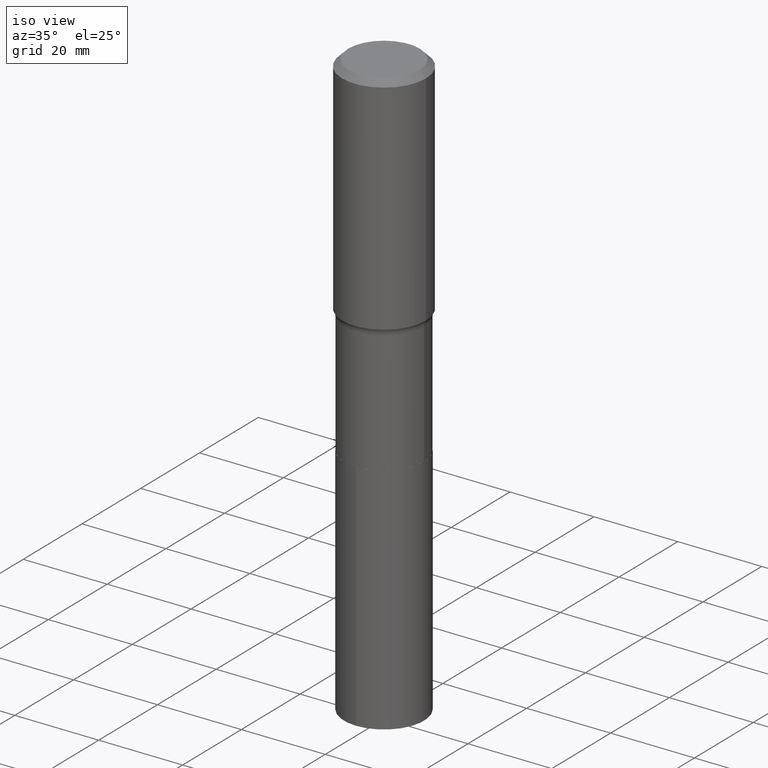
[diagram: clean part render]
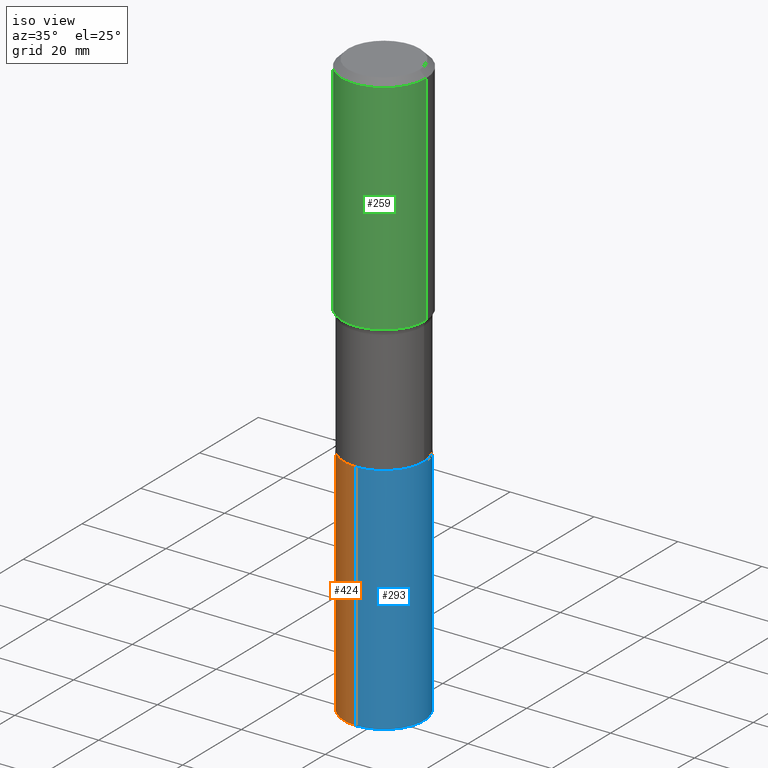
[diagram: same view with three faces highlighted in distinct colors, each labeled with its STEP entity id]
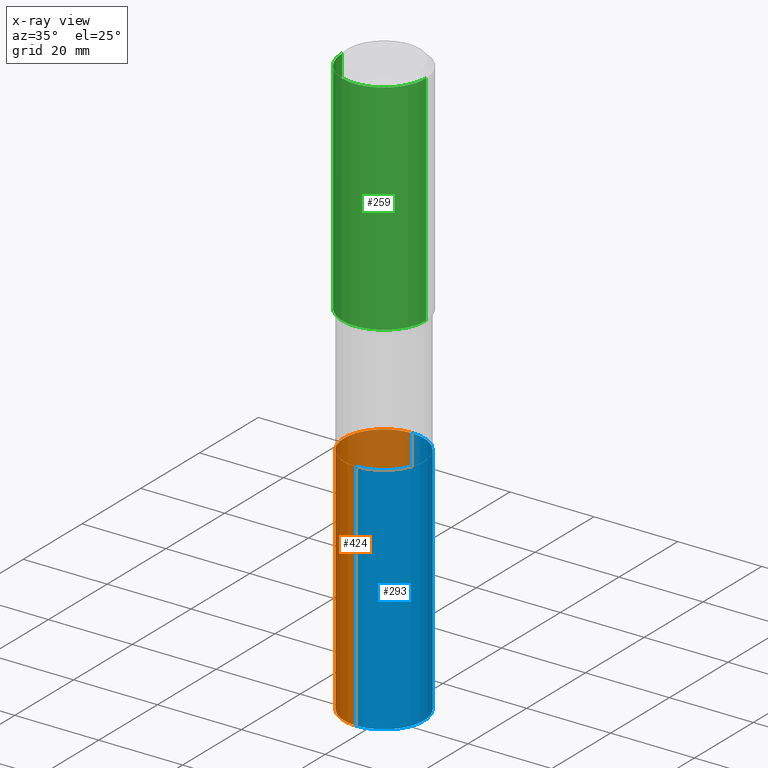
[diagram: x-ray of the same camera — body ghosted, the three highlighted faces saturated]
A machine part, iso view with three faces highlighted in distinct colors.
The next image is the same camera in x-ray (body ghosted, the three faces saturated) — at least one of them is partly hidden behind the body in this view.
Their STEP definitions:

[orange] entity #424 — the highlighted cylindrical surface (partial cylindrical patch) has radius 9.525 mm, axis along (-0, 0, 1).
#4 = DIRECTION ( 'NONE',  ( -6.982962677686265922E-15, -1.000000000000000000, 2.913971193241880372E-15 ) ) ;
#20 = CIRCLE ( 'NONE', #60, 0.3750000000000000555 ) ;
#49 = CARTESIAN_POINT ( 'NONE',  ( -2.618611004132215121E-15, -0.3750000000000192624, -5.511799999999999145 ) ) ;
#51 = ORIENTED_EDGE ( 'NONE', *, *, #168, .T. ) ;
#60 = AXIS2_PLACEMENT_3D ( 'NONE', #401, #94, #223 ) ;
#62 = CARTESIAN_POINT ( 'NONE',  ( 1.347781913481942727E-28, -1.924594477709692367E-14, -5.511800000000000033 ) ) ;
#68 = DIRECTION ( 'NONE',  ( -2.444960686371016703E-29, 3.492208995337349843E-15, 1.000000000000000000 ) ) ;
#71 = VECTOR ( 'NONE', #68, 39.37007874015748143 ) ;
#88 = ORIENTED_EDGE ( 'NONE', *, *, #137, .F. ) ;
#94 = DIRECTION ( 'NONE',  ( -2.444960686371016422E-29, 3.492208995337349843E-15, 1.000000000000000000 ) ) ;
#101 = LINE ( 'NONE', #458, #71 ) ;
#110 = EDGE_LOOP ( 'NONE', ( #305, #197, #51, #88 ) ) ;
#116 = VERTEX_POINT ( 'NONE', #49 ) ;
#137 = EDGE_CURVE ( 'NONE', #396, #446, #20, .T. ) ;
#168 = EDGE_CURVE ( 'NONE', #116, #446, #410, .T. ) ;
#183 = CARTESIAN_POINT ( 'NONE',  ( 8.108685467548674776E-29, -1.157705382333610061E-14, -3.315799999999999859 ) ) ;
#197 = ORIENTED_EDGE ( 'NONE', *, *, #417, .T. ) ;
#209 = DIRECTION ( 'NONE',  ( -2.444960686371016422E-29, 3.492208995337349843E-15, 1.000000000000000000 ) ) ;
#220 = CIRCLE ( 'NONE', #385, 0.3750000000000000555 ) ;
#223 = DIRECTION ( 'NONE',  ( -6.982962677686265922E-15, -1.000000000000000000, 2.913971193241880372E-15 ) ) ;
#239 = CARTESIAN_POINT ( 'NONE',  ( 2.664535259100510198E-15, 0.3749999999999883982, -3.315800000000000747 ) ) ;
#248 = DIRECTION ( 'NONE',  ( -6.982962677686265922E-15, -1.000000000000000000, 2.913971193241880372E-15 ) ) ;
#272 = FACE_OUTER_BOUND ( 'NONE', #110, .T. ) ;
#305 = ORIENTED_EDGE ( 'NONE', *, *, #343, .F. ) ;
#321 = CARTESIAN_POINT ( 'NONE',  ( -2.618611004132269158E-15, -0.3750000000000116573, -3.315799999999998526 ) ) ;
#343 = EDGE_CURVE ( 'NONE', #430, #396, #101, .T. ) ;
#360 = CARTESIAN_POINT ( 'NONE',  ( 2.664535259100482982E-15, 0.3749999999999807931, -5.511800000000000921 ) ) ;
#371 = AXIS2_PLACEMENT_3D ( 'NONE', #183, #386, #4 ) ;
#373 = DIRECTION ( 'NONE',  ( -2.444960686371016703E-29, 3.492208995337349843E-15, 1.000000000000000000 ) ) ;
#385 = AXIS2_PLACEMENT_3D ( 'NONE', #62, #209, #248 ) ;
#386 = DIRECTION ( 'NONE',  ( -2.444960686371016422E-29, 3.492208995337349843E-15, 1.000000000000000000 ) ) ;
#392 = CYLINDRICAL_SURFACE ( 'NONE', #371, 0.3750000000000000555 ) ;
#394 = VECTOR ( 'NONE', #373, 39.37007874015748143 ) ;
#396 = VERTEX_POINT ( 'NONE', #239 ) ;
#401 = CARTESIAN_POINT ( 'NONE',  ( 8.108685467548674776E-29, -1.157705382333610061E-14, -3.315799999999999859 ) ) ;
#407 = CARTESIAN_POINT ( 'NONE',  ( -2.618611004132269158E-15, -0.3750000000000116573, -3.315799999999998526 ) ) ;
#410 = LINE ( 'NONE', #407, #394 ) ;
#417 = EDGE_CURVE ( 'NONE', #430, #116, #220, .T. ) ;
#424 = ADVANCED_FACE ( 'NONE', ( #272 ), #392, .T. ) ;
#430 = VERTEX_POINT ( 'NONE', #360 ) ;
#446 = VERTEX_POINT ( 'NONE', #321 ) ;
#458 = CARTESIAN_POINT ( 'NONE',  ( 2.664535259100456555E-15, 0.3749999999999883982, -3.315800000000000747 ) ) ;

[blue] entity #293 — the highlighted cylindrical surface (partial cylindrical patch) has radius 9.525 mm, axis along (-0, 0, 1).
#19 = DIRECTION ( 'NONE',  ( -2.444960686371016422E-29, 3.492208995337349843E-15, 1.000000000000000000 ) ) ;
#21 = AXIS2_PLACEMENT_3D ( 'NONE', #384, #356, #282 ) ;
#46 = ORIENTED_EDGE ( 'NONE', *, *, #343, .T. ) ;
#48 = CARTESIAN_POINT ( 'NONE',  ( 8.108685467548674776E-29, -1.157705382333610061E-14, -3.315799999999999859 ) ) ;
#49 = CARTESIAN_POINT ( 'NONE',  ( -2.618611004132215121E-15, -0.3750000000000192624, -5.511799999999999145 ) ) ;
#68 = DIRECTION ( 'NONE',  ( -2.444960686371016703E-29, 3.492208995337349843E-15, 1.000000000000000000 ) ) ;
#71 = VECTOR ( 'NONE', #68, 39.37007874015748143 ) ;
#91 = AXIS2_PLACEMENT_3D ( 'NONE', #48, #361, #125 ) ;
#101 = LINE ( 'NONE', #458, #71 ) ;
#116 = VERTEX_POINT ( 'NONE', #49 ) ;
#125 = DIRECTION ( 'NONE',  ( -6.982962677686265922E-15, -1.000000000000000000, 2.913971193241880372E-15 ) ) ;
#147 = CARTESIAN_POINT ( 'NONE',  ( 8.108685467548674776E-29, -1.157705382333610061E-14, -3.315799999999999859 ) ) ;
#168 = EDGE_CURVE ( 'NONE', #116, #446, #410, .T. ) ;
#169 = CIRCLE ( 'NONE', #91, 0.3750000000000000555 ) ;
#177 = EDGE_CURVE ( 'NONE', #446, #396, #169, .T. ) ;
#187 = ORIENTED_EDGE ( 'NONE', *, *, #177, .F. ) ;
#229 = CIRCLE ( 'NONE', #21, 0.3750000000000000555 ) ;
#234 = EDGE_CURVE ( 'NONE', #116, #430, #229, .T. ) ;
#239 = CARTESIAN_POINT ( 'NONE',  ( 2.664535259100510198E-15, 0.3749999999999883982, -3.315800000000000747 ) ) ;
#273 = FACE_OUTER_BOUND ( 'NONE', #362, .T. ) ;
#281 = DIRECTION ( 'NONE',  ( -6.982962677686265922E-15, -1.000000000000000000, 2.913971193241880372E-15 ) ) ;
#282 = DIRECTION ( 'NONE',  ( -6.982962677686265922E-15, -1.000000000000000000, 2.913971193241880372E-15 ) ) ;
#293 = ADVANCED_FACE ( 'NONE', ( #273 ), #455, .T. ) ;
#308 = AXIS2_PLACEMENT_3D ( 'NONE', #147, #19, #281 ) ;
#321 = CARTESIAN_POINT ( 'NONE',  ( -2.618611004132269158E-15, -0.3750000000000116573, -3.315799999999998526 ) ) ;
#343 = EDGE_CURVE ( 'NONE', #430, #396, #101, .T. ) ;
#356 = DIRECTION ( 'NONE',  ( -2.444960686371016422E-29, 3.492208995337349843E-15, 1.000000000000000000 ) ) ;
#360 = CARTESIAN_POINT ( 'NONE',  ( 2.664535259100482982E-15, 0.3749999999999807931, -5.511800000000000921 ) ) ;
#361 = DIRECTION ( 'NONE',  ( -2.444960686371016422E-29, 3.492208995337349843E-15, 1.000000000000000000 ) ) ;
#362 = EDGE_LOOP ( 'NONE', ( #463, #46, #187, #368 ) ) ;
#368 = ORIENTED_EDGE ( 'NONE', *, *, #168, .F. ) ;
#373 = DIRECTION ( 'NONE',  ( -2.444960686371016703E-29, 3.492208995337349843E-15, 1.000000000000000000 ) ) ;
#384 = CARTESIAN_POINT ( 'NONE',  ( 1.347781913481942727E-28, -1.924594477709692367E-14, -5.511800000000000033 ) ) ;
#394 = VECTOR ( 'NONE', #373, 39.37007874015748143 ) ;
#396 = VERTEX_POINT ( 'NONE', #239 ) ;
#407 = CARTESIAN_POINT ( 'NONE',  ( -2.618611004132269158E-15, -0.3750000000000116573, -3.315799999999998526 ) ) ;
#410 = LINE ( 'NONE', #407, #394 ) ;
#430 = VERTEX_POINT ( 'NONE', #360 ) ;
#446 = VERTEX_POINT ( 'NONE', #321 ) ;
#455 = CYLINDRICAL_SURFACE ( 'NONE', #308, 0.3750000000000000555 ) ;
#458 = CARTESIAN_POINT ( 'NONE',  ( 2.664535259100456555E-15, 0.3749999999999883982, -3.315800000000000747 ) ) ;
#463 = ORIENTED_EDGE ( 'NONE', *, *, #234, .T. ) ;

[green] entity #259 — the highlighted cylindrical surface (partial cylindrical patch) has radius 10 mm, axis along (-0, 0, 1).
#9 = AXIS2_PLACEMENT_3D ( 'NONE', #388, #83, #63 ) ;
#26 = CYLINDRICAL_SURFACE ( 'NONE', #108, 0.3937000000000001609 ) ;
#63 = DIRECTION ( 'NONE',  ( 1.000000000000000000, -6.982962677686265922E-15, 0.000000000000000000 ) ) ;
#83 = DIRECTION ( 'NONE',  ( -2.445468806185136597E-29, 3.491481338843145583E-15, 1.000000000000000000 ) ) ;
#97 = DIRECTION ( 'NONE',  ( -2.445468806185136877E-29, 3.491481338843145188E-15, 1.000000000000000000 ) ) ;
#103 = CARTESIAN_POINT ( 'NONE',  ( 0.3937000000000001609, -2.749192406205084400E-15, 1.919750796630860732E-29 ) ) ;
#108 = AXIS2_PLACEMENT_3D ( 'NONE', #379, #414, #241 ) ;
#136 = ORIENTED_EDGE ( 'NONE', *, *, #339, .T. ) ;
#140 = VECTOR ( 'NONE', #149, 39.37007874015748143 ) ;
#149 = DIRECTION ( 'NONE',  ( -2.445468806185136877E-29, 3.491481338843145188E-15, 1.000000000000000000 ) ) ;
#196 = EDGE_LOOP ( 'NONE', ( #266, #387, #136, #290 ) ) ;
#216 = EDGE_CURVE ( 'NONE', #257, #307, #242, .T. ) ;
#217 = FACE_OUTER_BOUND ( 'NONE', #196, .T. ) ;
#218 = CARTESIAN_POINT ( 'NONE',  ( 5.167022714851833902E-29, -7.377139033896165058E-15, -2.112896595443491066 ) ) ;
#241 = DIRECTION ( 'NONE',  ( 1.000000000000000000, -6.982962677686266711E-15, 4.876176775795935793E-29 ) ) ;
#242 = LINE ( 'NONE', #415, #140 ) ;
#252 = CIRCLE ( 'NONE', #412, 0.3937000000000002720 ) ;
#257 = VERTEX_POINT ( 'NONE', #278 ) ;
#259 = ADVANCED_FACE ( 'NONE', ( #217 ), #26, .T. ) ;
#266 = ORIENTED_EDGE ( 'NONE', *, *, #216, .F. ) ;
#278 = CARTESIAN_POINT ( 'NONE',  ( -0.3937000000000002720, -4.579732283208647905E-15, -2.112896595443491066 ) ) ;
#284 = CIRCLE ( 'NONE', #9, 0.3937000000000000499 ) ;
#290 = ORIENTED_EDGE ( 'NONE', *, *, #438, .F. ) ;
#299 = CARTESIAN_POINT ( 'NONE',  ( 0.3937000000000000499, -2.955381836670466588E-15, -0.05905500000000037109 ) ) ;
#307 = VERTEX_POINT ( 'NONE', #320 ) ;
#317 = CARTESIAN_POINT ( 'NONE',  ( 0.3937000000000002720, -1.012633144010124985E-14, -2.112896595443491066 ) ) ;
#320 = CARTESIAN_POINT ( 'NONE',  ( -0.3937000000000000499, -9.942574814932580477E-16, -0.05905500000000037109 ) ) ;
#329 = VERTEX_POINT ( 'NONE', #317 ) ;
#339 = EDGE_CURVE ( 'NONE', #329, #465, #459, .T. ) ;
#349 = DIRECTION ( 'NONE',  ( 1.000000000000000000, -6.982962677686269077E-15, 0.000000000000000000 ) ) ;
#369 = EDGE_CURVE ( 'NONE', #257, #329, #252, .T. ) ;
#379 = CARTESIAN_POINT ( 'NONE',  ( 0.000000000000000000, 0.000000000000000000, 0.000000000000000000 ) ) ;
#387 = ORIENTED_EDGE ( 'NONE', *, *, #369, .T. ) ;
#388 = CARTESIAN_POINT ( 'NONE',  ( 1.444171603492641547E-30, -2.061894304653832726E-16, -0.05905500000000037109 ) ) ;
#412 = AXIS2_PLACEMENT_3D ( 'NONE', #218, #421, #349 ) ;
#414 = DIRECTION ( 'NONE',  ( -2.445468806185136597E-29, 3.491481338843145583E-15, 1.000000000000000000 ) ) ;
#415 = CARTESIAN_POINT ( 'NONE',  ( -0.3937000000000001609, 2.797406750687515575E-15, -1.936584745033357296E-29 ) ) ;
#421 = DIRECTION ( 'NONE',  ( -2.445468806185136597E-29, 3.491481338843145583E-15, 1.000000000000000000 ) ) ;
#427 = VECTOR ( 'NONE', #97, 39.37007874015748143 ) ;
#438 = EDGE_CURVE ( 'NONE', #307, #465, #284, .T. ) ;
#459 = LINE ( 'NONE', #103, #427 ) ;
#465 = VERTEX_POINT ( 'NONE', #299 ) ;